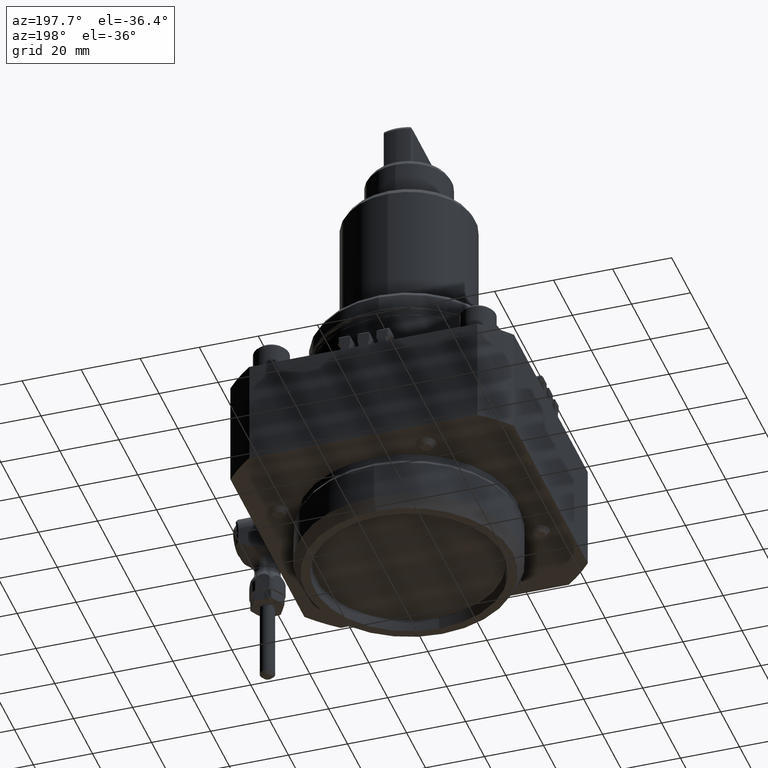
[diagram: clean part render]
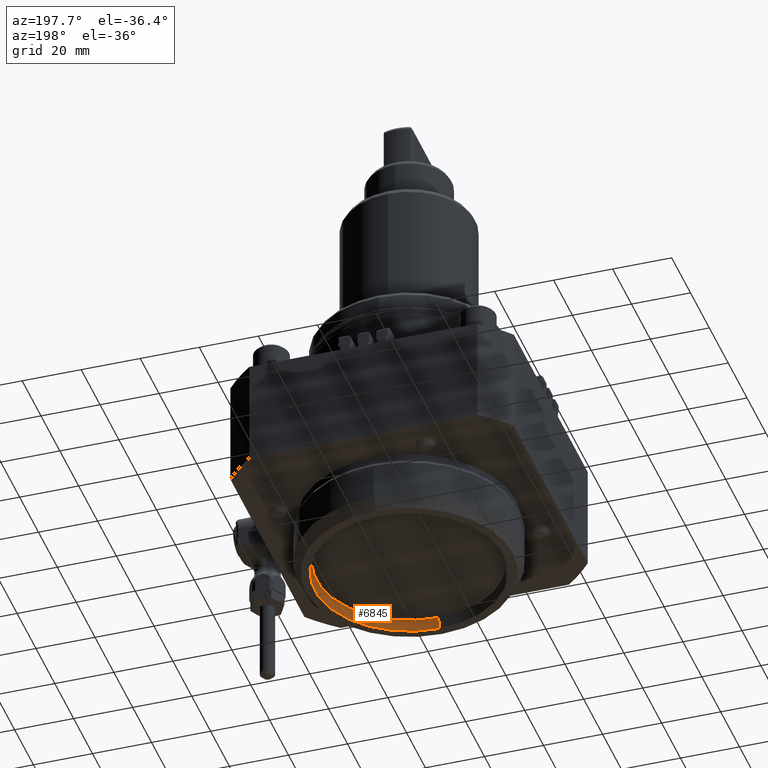
[diagram: same view with one face highlighted and labeled with its STEP entity id]
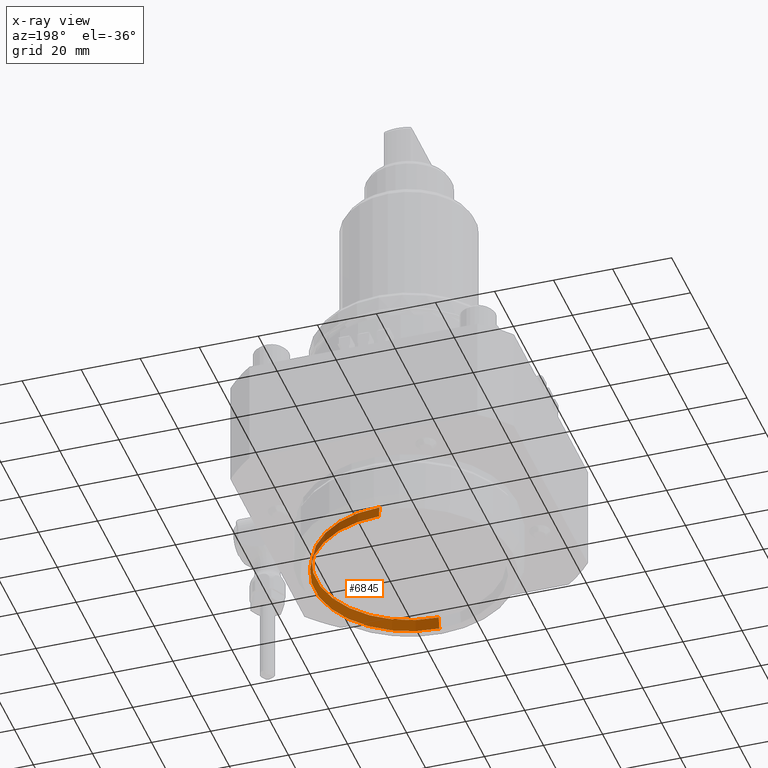
[diagram: x-ray of the same camera — body ghosted, the highlighted face saturated]
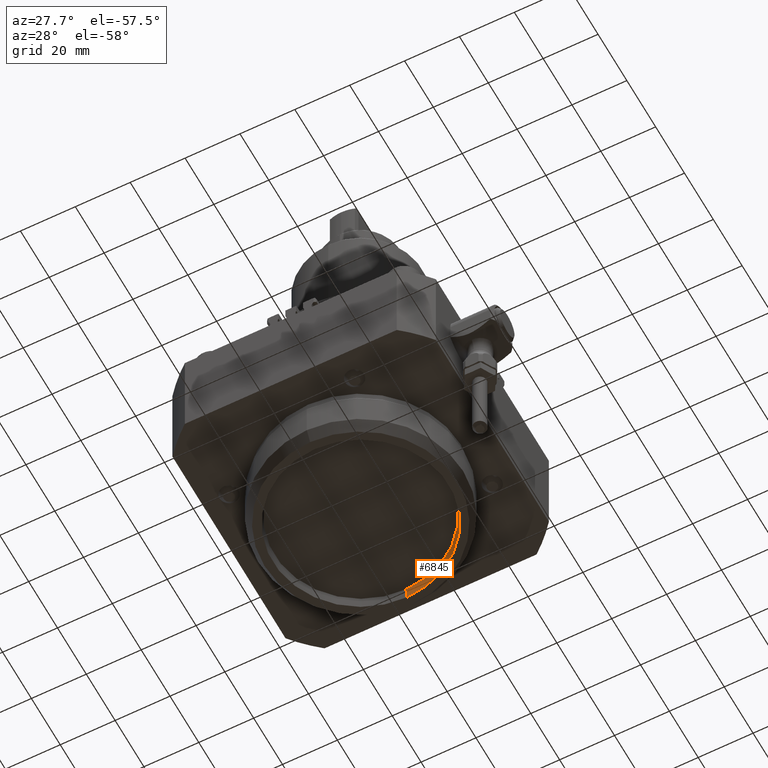
[diagram: same view with one face highlighted and labeled with its STEP entity id]
A machine part, auxiliary view. The second image highlights one B-rep face of the part: STEP entity #6845.
The next image is the same camera in x-ray: the body ghosted, the highlighted face saturated — about 0% of this face is hidden behind the body in this view.
A second angle (auxiliary view) of the same face is appended — the face is thin or edge-on in the first view.
In plain terms, the highlighted conical surface has half-angle 8 deg.
Its self-contained STEP definition (entity closure, byte-faithful):
#6656=CARTESIAN_POINT('',(0.,31.437836661,-53.));
#6657=VERTEX_POINT('',#6656);
#6658=CARTESIAN_POINT('',(-0.,-31.437836661,-53.));
#6659=VERTEX_POINT('',#6658);
#6667=CARTESIAN_POINT('',(-0.,-0.,-53.));
#6668=DIRECTION('',(-0.,0.,1.));
#6669=DIRECTION('',(0.,1.,-0.));
#6670=AXIS2_PLACEMENT_3D('',#6667,#6668,#6669);
#6671=CIRCLE('',#6670,31.437836661);
#6672=EDGE_CURVE('',#6659,#6657,#6671,.T.);
#6772=CARTESIAN_POINT('',(-0.,-32.,-57.));
#6773=VERTEX_POINT('',#6772);
#6774=CARTESIAN_POINT('',(0.,32.,-57.));
#6775=VERTEX_POINT('',#6774);
#6776=CARTESIAN_POINT('',(-0.,-0.,-57.));
#6777=DIRECTION('',(-0.,0.,1.));
#6778=DIRECTION('',(0.,1.,-0.));
#6779=AXIS2_PLACEMENT_3D('',#6776,#6777,#6778);
#6780=CIRCLE('',#6779,32.);
#6781=EDGE_CURVE('',#6773,#6775,#6780,.T.);
#6824=CARTESIAN_POINT('',(-0.,-0.,-55.));
#6825=DIRECTION('',(0.,-0.,-1.));
#6826=DIRECTION('',(0.,1.,-0.));
#6827=AXIS2_PLACEMENT_3D('',#6824,#6825,#6826);
#6828=CONICAL_SURFACE('',#6827,31.718918331,8.);
#6829=CARTESIAN_POINT('',(0.,32.,-57.));
#6830=DIRECTION('',(-0.,-0.139173101,0.990268069));
#6831=VECTOR('',#6830,4.03931029);
#6832=LINE('',#6829,#6831);
#6833=EDGE_CURVE('',#6775,#6657,#6832,.T.);
#6834=ORIENTED_EDGE('',*,*,#6833,.F.);
#6835=ORIENTED_EDGE('',*,*,#6781,.F.);
#6836=CARTESIAN_POINT('',(-0.,-32.,-57.));
#6837=DIRECTION('',(0.,0.139173101,0.990268069));
#6838=VECTOR('',#6837,4.03931029);
#6839=LINE('',#6836,#6838);
#6840=EDGE_CURVE('',#6773,#6659,#6839,.T.);
#6841=ORIENTED_EDGE('',*,*,#6840,.T.);
#6842=ORIENTED_EDGE('',*,*,#6672,.T.);
#6843=EDGE_LOOP('',(#6834,#6835,#6841,#6842));
#6844=FACE_BOUND('',#6843,.T.);
#6845=ADVANCED_FACE('',(#6844),#6828,.F.);